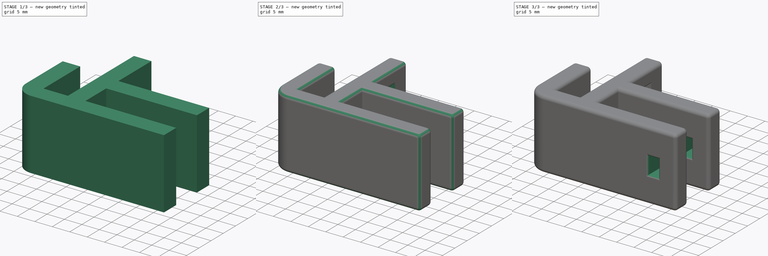
[diagram: build sequence overview — one tinted view per stage of 3, left to right]
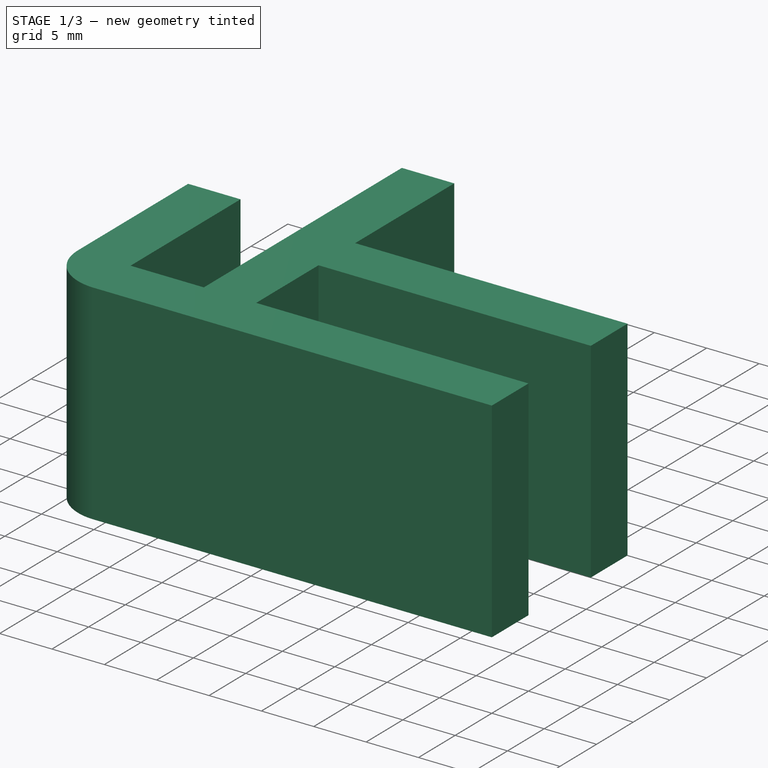
[diagram: stage 1 of 3 — iso view after this stage's code; geometry added in this stage tinted green]
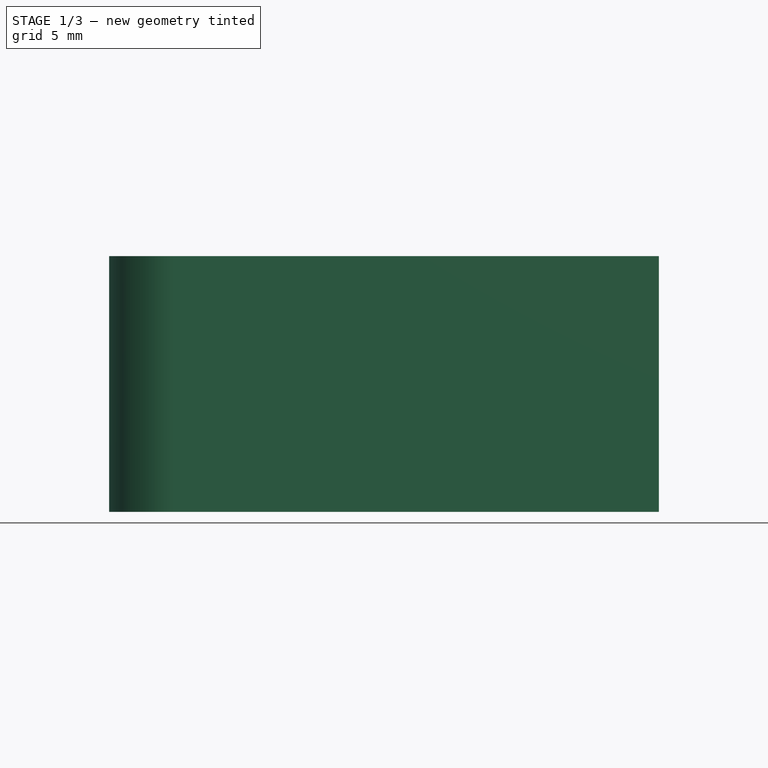
[diagram: stage 1 of 3 — front view after this stage's code; geometry added in this stage tinted green]
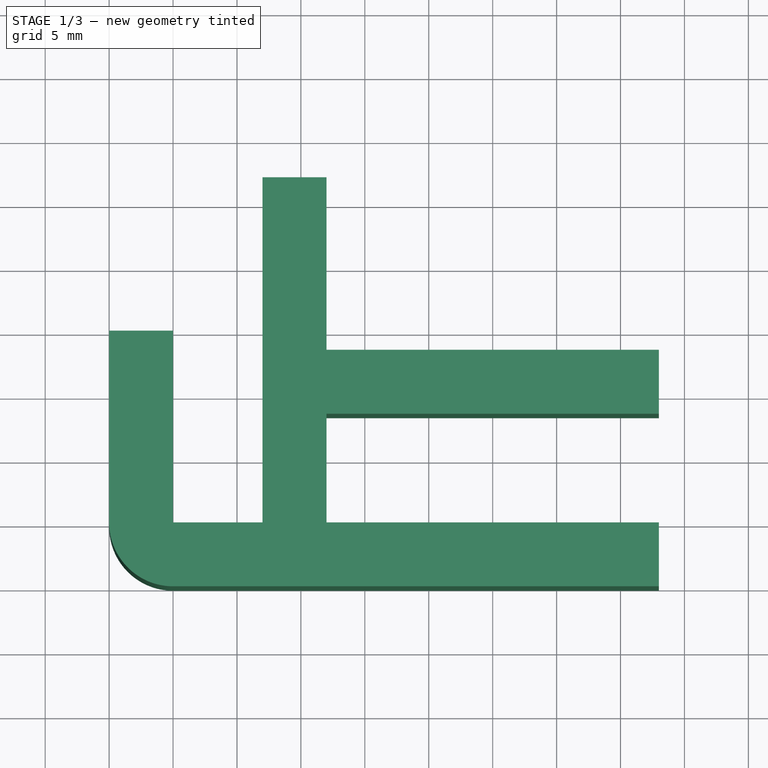
[diagram: stage 1 of 3 — top view after this stage's code; geometry added in this stage tinted green]
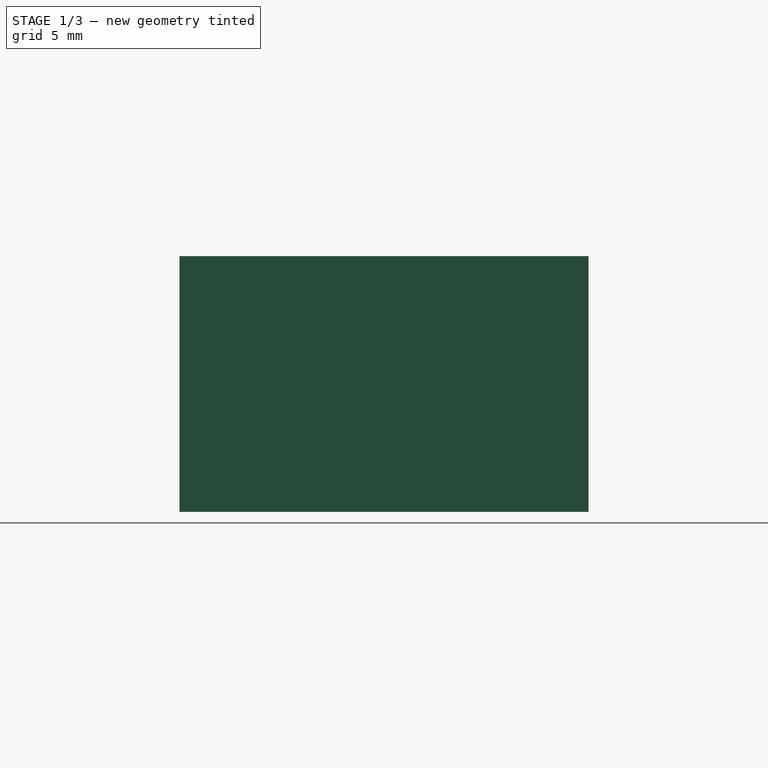
[diagram: stage 1 of 3 — right view after this stage's code; geometry added in this stage tinted green]
FCSTD DOCUMENT  (FreeCAD 0.19R)
Label: balkon_sichtschutz
License: All rights reserved
LicenseURL: http://en.wikipedia.org/wiki/All_rights_reserved
objects: PartDesign::Fillet×4, Sketcher::SketchObject×3, PartDesign::Pocket×2, PartDesign::Pad×1, PartDesign::Body×1
note: 18 computed .brp shape members not serialized (recipe doc carries the construction recipe); baked Part::Feature solids carry a one-line shape summary decoded from their .brp

FEATURE [Sketcher::SketchObject] Sketch
  FullyConstrained = true
  MapMode = 5
  Support = -> [XY_Plane]
  sketch-geometry (14):
    g0: LineSegment StartX=5 StartY=20 StartZ=0 EndX=5 EndY=5 EndZ=0
    g1: LineSegment StartX=5 StartY=5 StartZ=0 EndX=12 EndY=5 EndZ=0
    g2: LineSegment StartX=12 StartY=5 StartZ=0 EndX=12 EndY=32 EndZ=0
    g3: LineSegment StartX=12 StartY=32 StartZ=0 EndX=17 EndY=32 EndZ=0
    g4: LineSegment StartX=17 StartY=32 StartZ=0 EndX=17 EndY=18.5 EndZ=0
    g5: LineSegment StartX=17 StartY=18.5 StartZ=0 EndX=43 EndY=18.5 EndZ=0
    g6: LineSegment StartX=43 StartY=18.5 StartZ=0 EndX=43 EndY=13.5 EndZ=0
    g7: LineSegment StartX=43 StartY=13.5 StartZ=0 EndX=17 EndY=13.5 EndZ=0
    g8: LineSegment StartX=17 StartY=13.5 StartZ=0 EndX=17 EndY=5 EndZ=0
    g9: LineSegment StartX=17 StartY=5 StartZ=0 EndX=43 EndY=5 EndZ=0
    g10: LineSegment StartX=43 StartY=0 StartZ=0 EndX=0 EndY=0 EndZ=0
    g11: LineSegment StartX=0 StartY=0 StartZ=0 EndX=0 EndY=20 EndZ=0
    g12: LineSegment StartX=0 StartY=20 StartZ=0 EndX=5 EndY=20 EndZ=0
    g13: LineSegment StartX=43 StartY=5 StartZ=0 EndX=43 EndY=0 EndZ=0
  constraints (41):
    c: Vertical(g0)
    c: Coincident(g0,g1)
    c: Horizontal(g1)
    c: Coincident(g1,g2)
    c: Vertical(g2)
    c: Coincident(g2,g3)
    c: Horizontal(g3)
    c: Coincident(g3,g4)
    c: Vertical(g4)
    c: Coincident(g4,g5)
    c: Horizontal(g5)
    c: Coincident(g5,g6)
    c: Vertical(g6)
    c: Coincident(g6,g7)
    c: Horizontal(g7)
    c: Coincident(g7,g8)
    c: Vertical(g8)
    c: Coincident(g8,g9)
    c: Horizontal(g9)
    c: Horizontal(g10)
    c: Coincident(g10,g11)
    c: Vertical(g11)
    c: Coincident(g11,g12)
    c: Coincident(g12,g0)
    c: Horizontal(g12)
    c: Coincident(g9,g13)
    c: Coincident(g13,g10)
    c: Vertical(g13)
    c: Vertical(g4,g7)
    c: Horizontal(g1,g8)
    c: DistanceY(g13,g13) = 5
    c: DistanceY(g8,g8) = 8.5
    c: DistanceX(g9,g9) = 26
    c: DistanceY(g0,g0) = 15
    c: DistanceX(g12,g12) = 5
    c: Equal(g9,g7)
    c: Equal(g6,g13)
    c: DistanceX(g3,g3) = 5
    c: DistanceY(g2,g2) = 27
    c: Coincident(g10,g-1)
    c: DistanceX(g1,g1) = 7
FEATURE [PartDesign::Pad] Pad
  Direction = (1,1,1)
  Length = 20
  Length2 = 100
  Profile = -> Sketch
  Type = 0
FEATURE [PartDesign::Fillet] Fillet
  Base = -> Pad [Edge35]
  BaseFeature = -> Pad
  Radius = 5
  SupportTransform = false
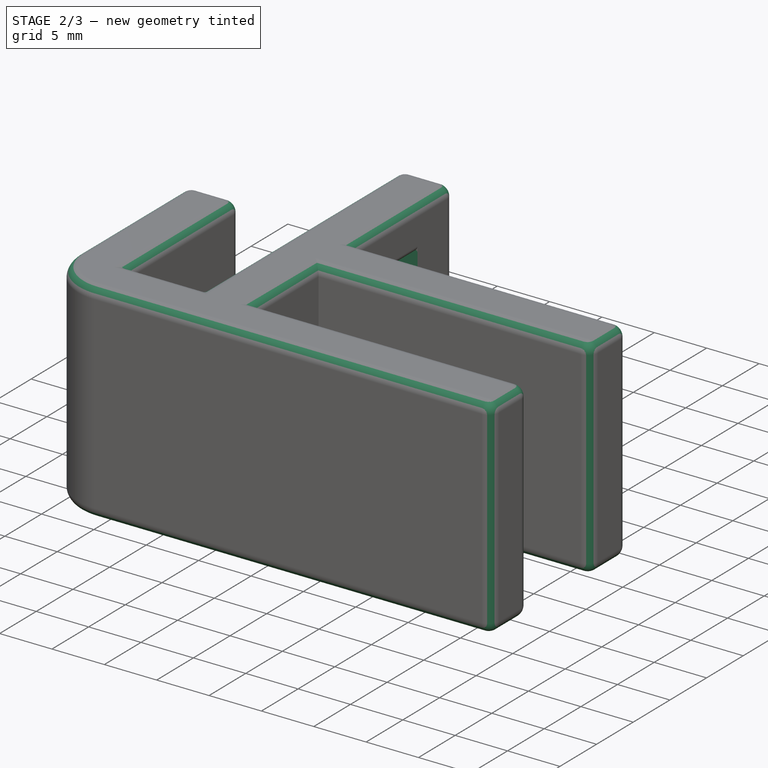
[diagram: stage 2 of 3 — iso view after this stage's code; geometry added in this stage tinted green]
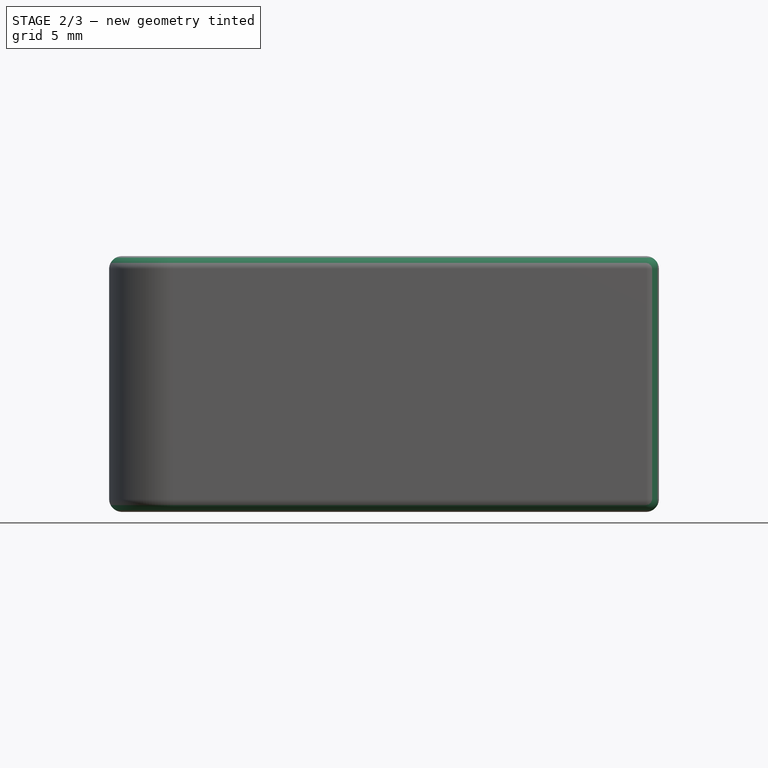
[diagram: stage 2 of 3 — front view after this stage's code; geometry added in this stage tinted green]
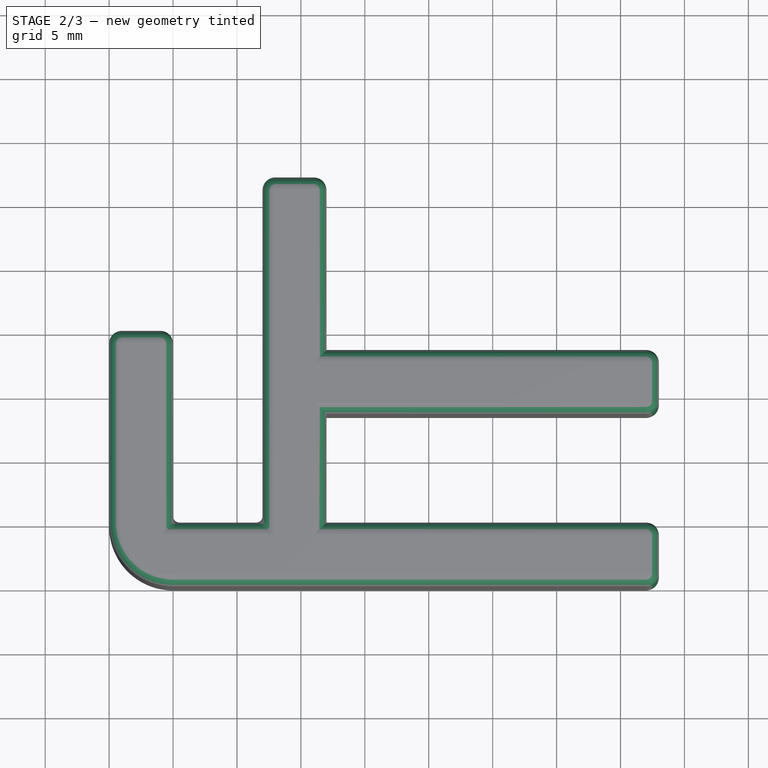
[diagram: stage 2 of 3 — top view after this stage's code; geometry added in this stage tinted green]
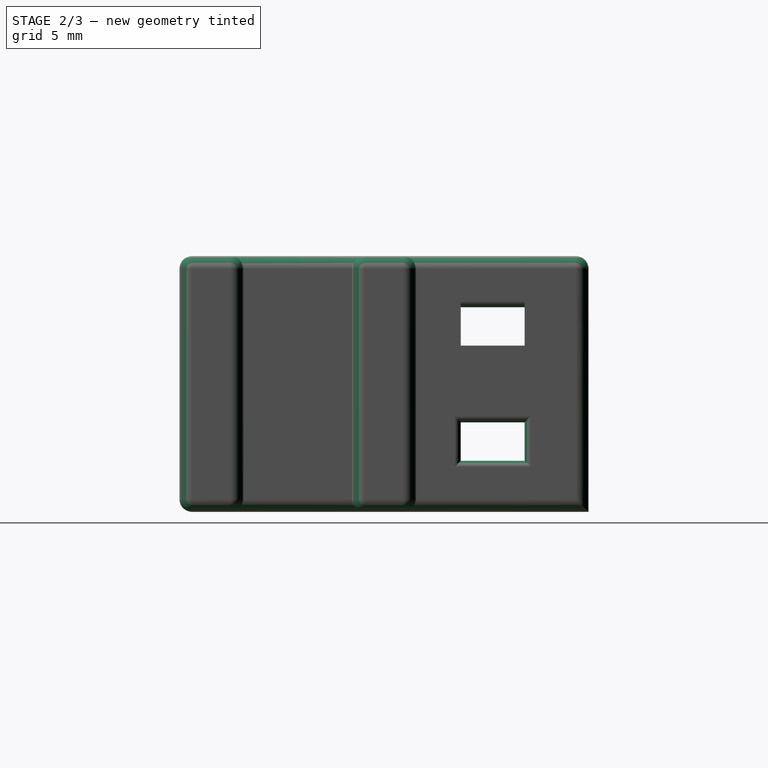
[diagram: stage 2 of 3 — right view after this stage's code; geometry added in this stage tinted green]
FEATURE [PartDesign::Fillet] Fillet001
  Base = -> Fillet [Edge35,Edge23,Edge7,Edge25,Edge9,Edge37,Edge43,Edge31,Edge29,Edge27,Edge34,Edge45,Edge16,Edge42,Edge32,Face5,Edge22,Edge4,Edge15,Edge18,Edge12,Edge10,Edge8,Edge13,Edge1,Edge40,Edge30,Edge14,Edge6,Edge3,Edge21,Edge11]
  BaseFeature = -> Fillet
  Radius = 1
  SupportTransform = false
FEATURE [Sketcher::SketchObject] Sketch001
  FullyConstrained = true
  MapMode = 5
  Placement = pos=(12,0,0) rot=(0.57735,-0.57735,-0.57735;2.0944rad)
  Support = -> [Fillet001]
  sketch-geometry (8):
    g0: LineSegment StartX=-27 StartY=7 StartZ=0 EndX=-22 EndY=7 EndZ=0
    g1: LineSegment StartX=-22 StartY=7 StartZ=0 EndX=-22 EndY=4 EndZ=0
    g2: LineSegment StartX=-22 StartY=4 StartZ=0 EndX=-27 EndY=4 EndZ=0
    g3: LineSegment StartX=-27 StartY=4 StartZ=0 EndX=-27 EndY=7 EndZ=0
    g4: LineSegment StartX=-27 StartY=16 StartZ=0 EndX=-22 EndY=16 EndZ=0
    g5: LineSegment StartX=-22 StartY=16 StartZ=0 EndX=-22 EndY=13 EndZ=0
    g6: LineSegment StartX=-22 StartY=13 StartZ=0 EndX=-27 EndY=13 EndZ=0
    g7: LineSegment StartX=-27 StartY=13 StartZ=0 EndX=-27 EndY=16 EndZ=0
  constraints (24):
    c: Coincident(g0,g1)
    c: Coincident(g1,g2)
    c: Coincident(g2,g3)
    c: Coincident(g3,g0)
    c: Horizontal(g0)
    c: Horizontal(g2)
    c: Vertical(g1)
    c: Vertical(g3)
    c: DistanceY(g1,g1) = 3
    c: DistanceX(g0,g0) = 5
    c: DistanceX(g1,g-1) = 22
    c: DistanceY(g-1,g1) = 4
    c: Coincident(g4,g5)
    c: Coincident(g5,g6)
    c: Coincident(g6,g7)
    c: Coincident(g7,g4)
    c: Horizontal(g4)
    c: Horizontal(g6)
    c: Vertical(g5)
    c: Vertical(g7)
    c: Vertical(g6,g0)
    c: Equal(g3,g7)
    c: Equal(g4,g0)
    c: DistanceY(g0,g5) = 6
FEATURE [PartDesign::Pocket] Pocket
  BaseFeature = -> Fillet001
  Length = 5
  Length2 = 100
  Profile = -> Sketch001
  Type = 1
FEATURE [PartDesign::Fillet] Fillet002
  Base = -> Pocket [Edge136,Edge133,Edge134,Edge135,Edge131,Edge130,Edge129,Edge132,Edge145,Edge142,Edge143,Edge144,Edge149,Edge146,Edge147,Edge148]
  BaseFeature = -> Pocket
  Radius = 0.5
  SupportTransform = false
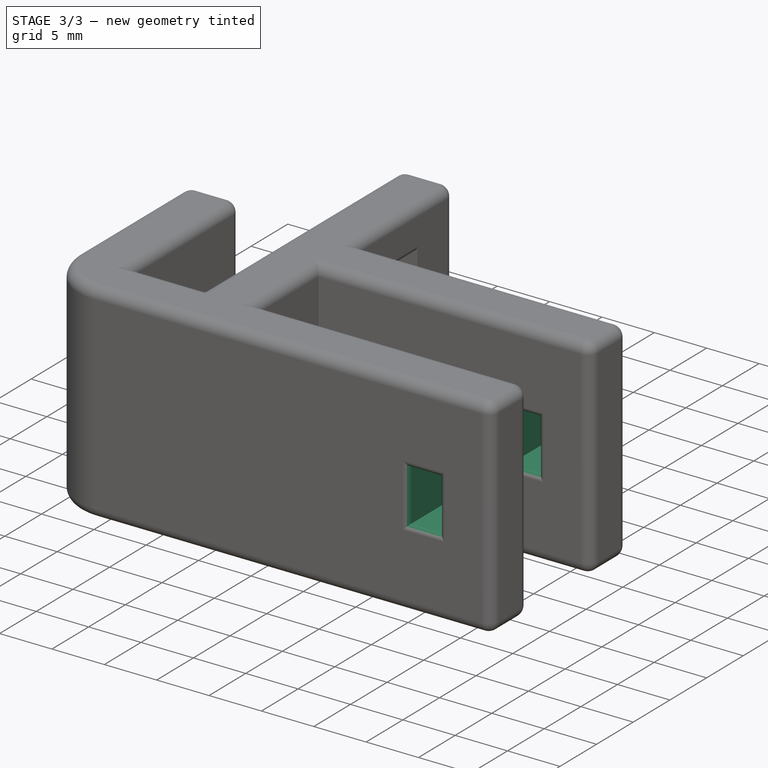
[diagram: stage 3 of 3 — iso view after this stage's code; geometry added in this stage tinted green]
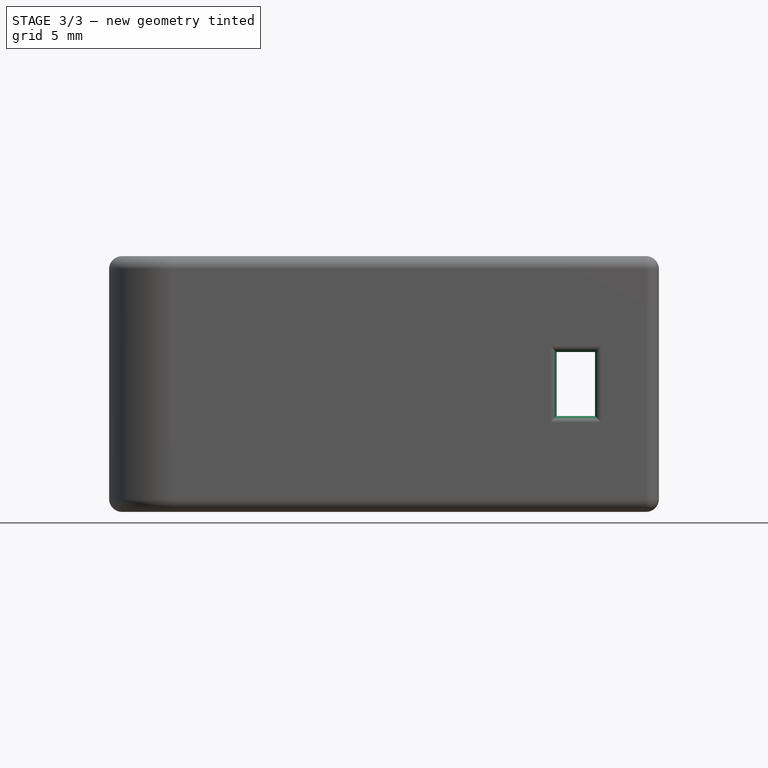
[diagram: stage 3 of 3 — front view after this stage's code; geometry added in this stage tinted green]
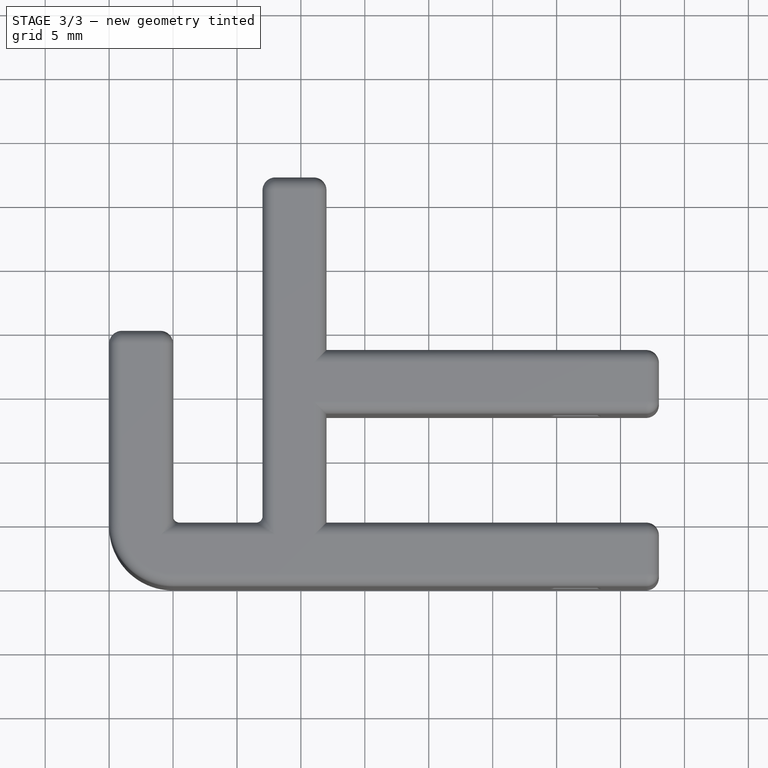
[diagram: stage 3 of 3 — top view after this stage's code; geometry added in this stage tinted green]
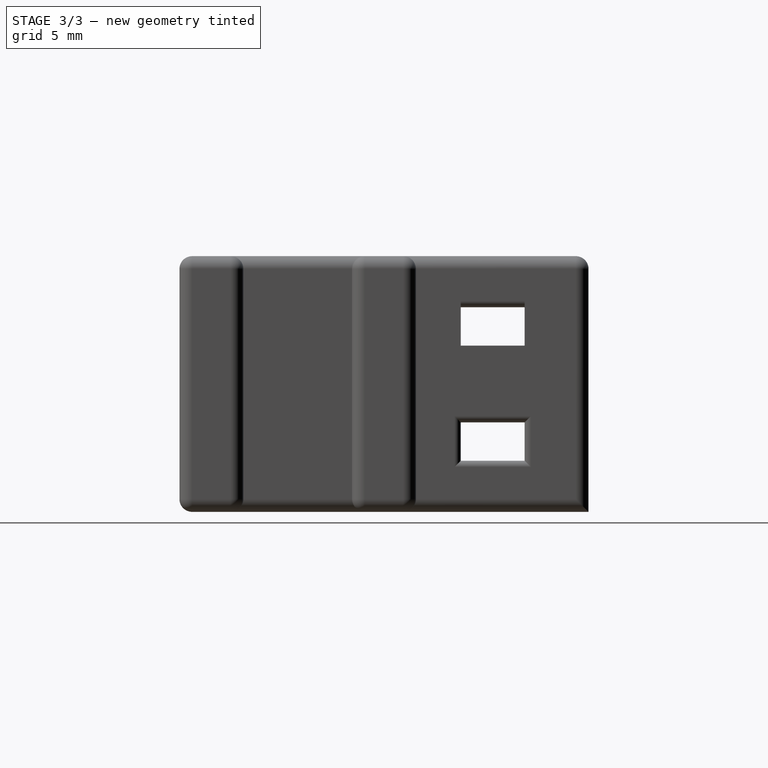
[diagram: stage 3 of 3 — right view after this stage's code; geometry added in this stage tinted green]
FEATURE [Sketcher::SketchObject] Sketch002
  FullyConstrained = true
  MapMode = 5
  Placement = pos=(0,18.5,0) rot=(0,0.707107,0.707107;3.14159rad)
  Support = -> [Fillet002]
  sketch-geometry (4):
    g0: LineSegment StartX=-38 StartY=12.5 StartZ=0 EndX=-35 EndY=12.5 EndZ=0
    g1: LineSegment StartX=-35 StartY=12.5 StartZ=0 EndX=-35 EndY=7.5 EndZ=0
    g2: LineSegment StartX=-35 StartY=7.5 StartZ=0 EndX=-38 EndY=7.5 EndZ=0
    g3: LineSegment StartX=-38 StartY=7.5 StartZ=0 EndX=-38 EndY=12.5 EndZ=0
  constraints (12):
    c: Coincident(g0,g1)
    c: Coincident(g1,g2)
    c: Coincident(g2,g3)
    c: Coincident(g3,g0)
    c: Horizontal(g0)
    c: Horizontal(g2)
    c: Vertical(g1)
    c: Vertical(g3)
    c: DistanceX(g0,g0) = 3
    c: DistanceY(g1,g1) = 5
    c: DistanceX(g1,g-1) = 35
    c: DistanceY(g-1,g1) = 7.5
FEATURE [PartDesign::Pocket] Pocket001
  BaseFeature = -> Fillet002
  Length = 5
  Length2 = 100
  Profile = -> Sketch002
  Type = 1
FEATURE [PartDesign::Fillet] Fillet003
  Base = -> Pocket001 [Edge150,Edge149,Edge148,Edge151,Edge186,Edge185,Edge187,Edge188,Edge198,Edge195,Edge196,Edge197,Edge172,Edge175,Edge174,Edge173]
  BaseFeature = -> Pocket001
  Radius = 0.5
  SupportTransform = false
FEATURE [PartDesign::Body] Body
  Group = -> [Sketch,Pad,Fillet,Fillet001,Sketch001,Pocket,Fillet002,Sketch002,Pocket001,Fillet003]
  Origin = -> Origin
  Tip = -> Fillet003
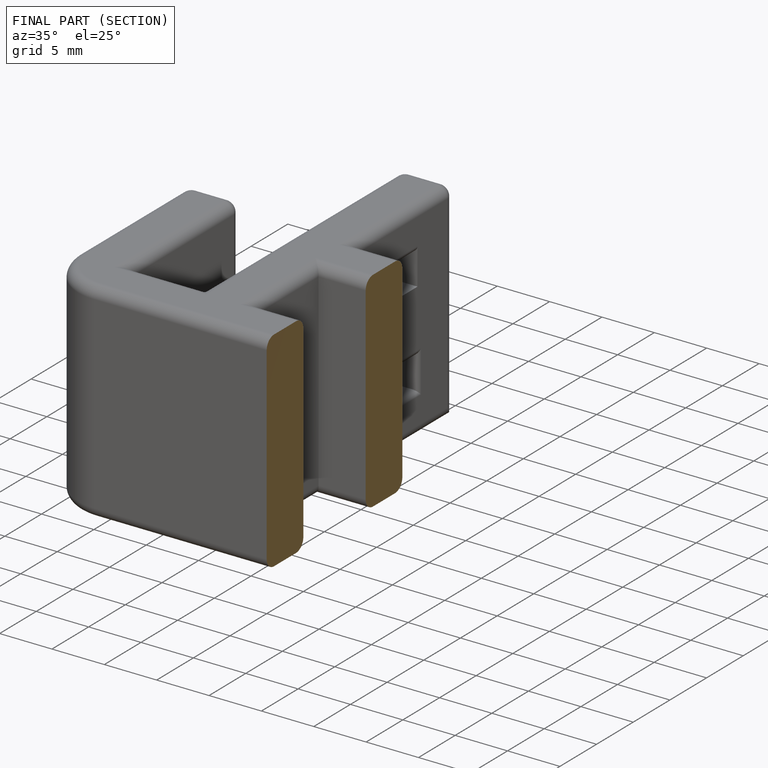
[diagram: finished part — half-section view (interior)]
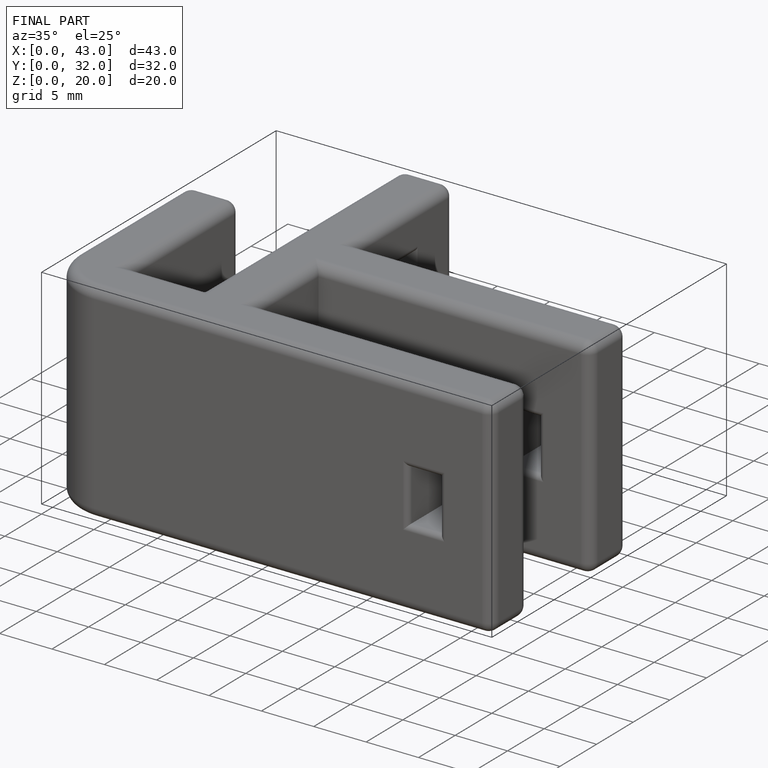
[diagram: finished part — iso view with bounding-box wireframe]
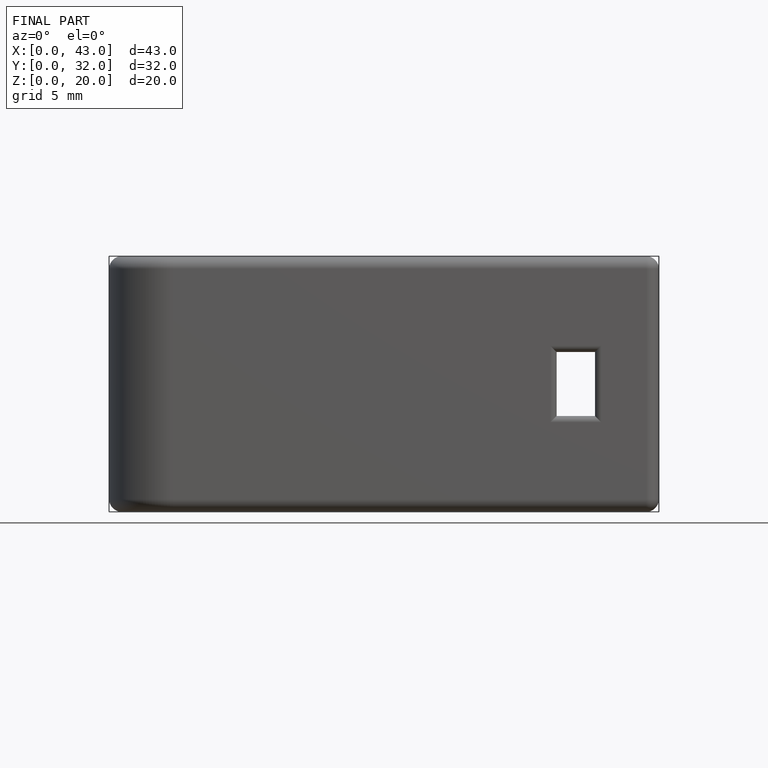
[diagram: finished part — front view with bounding-box wireframe]
